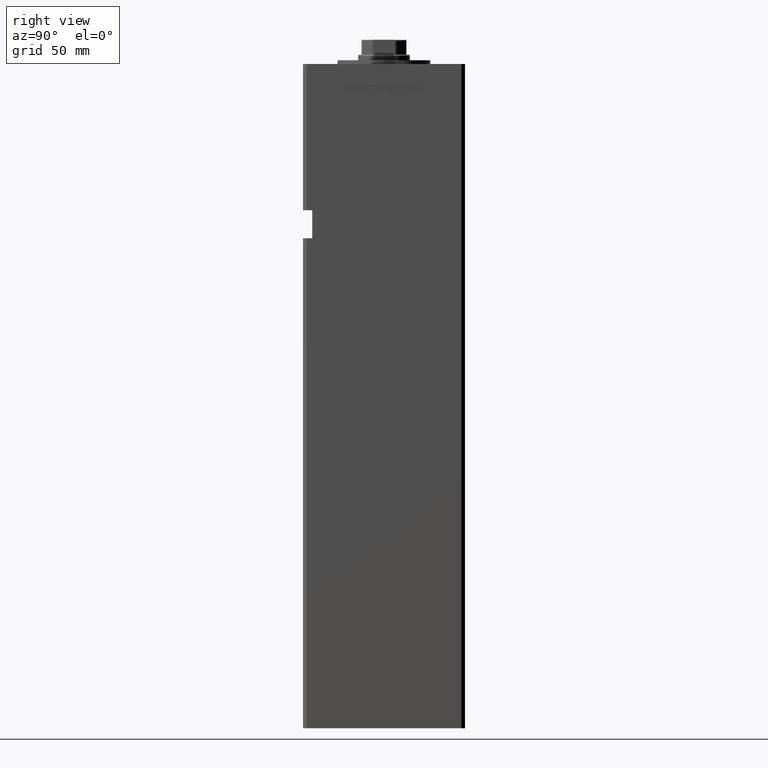
[diagram: clean part render]
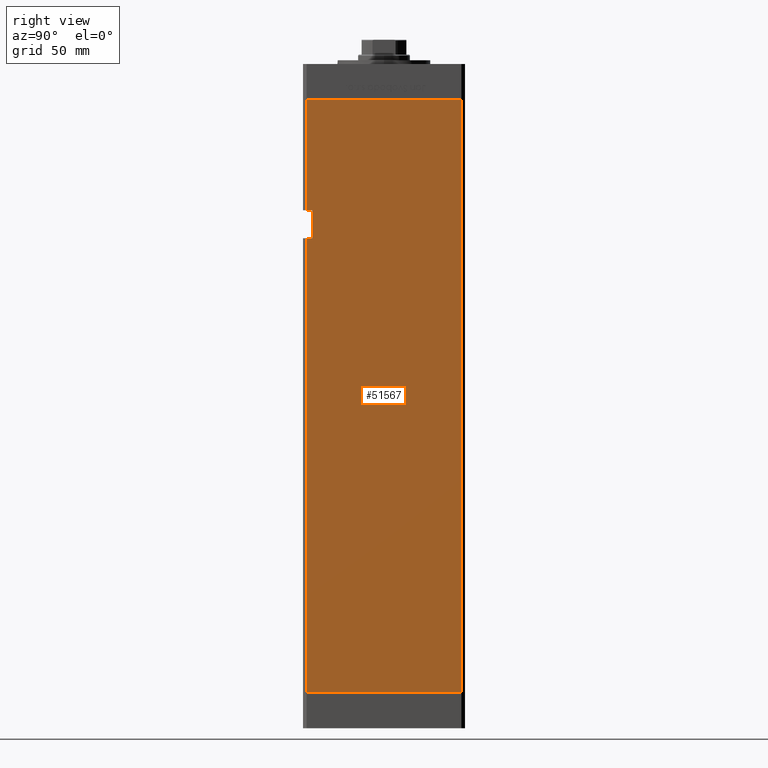
[diagram: same view with one face highlighted and labeled with its STEP entity id]
A machine part, right view. The second image highlights one B-rep face of the part: STEP entity #51567.
In plain terms, the highlighted planar face has unit normal (1, -0, 0).
Its self-contained STEP definition (entity closure, byte-faithful):
#620 = VERTEX_POINT ( 'NONE', #15685 ) ;
#904 = VECTOR ( 'NONE', #6779, 1000.000000000000000 ) ;
#1371 = DIRECTION ( 'NONE',  ( -3.344045254895050973E-16, -1.000000000000000000, 0.000000000000000000 ) ) ;
#1401 = DIRECTION ( 'NONE',  ( -0.000000000000000000, -1.000000000000000000, -0.000000000000000000 ) ) ;
#1900 = CARTESIAN_POINT ( 'NONE',  ( 50.00000000000001421, 41.49999999999999289, 318.5000000000000000 ) ) ;
#2284 = DIRECTION ( 'NONE',  ( -3.344045254895050973E-16, -1.000000000000000000, 0.000000000000000000 ) ) ;
#2687 = EDGE_CURVE ( 'NONE', #52659, #20783, #19948, .T. ) ;
#2776 = VECTOR ( 'NONE', #24453, 1000.000000000000000 ) ;
#3063 = ORIENTED_EDGE ( 'NONE', *, *, #32526, .T. ) ;
#4137 = VERTEX_POINT ( 'NONE', #47708 ) ;
#5709 = CARTESIAN_POINT ( 'NONE',  ( 49.99999999999998579, -38.50000000000000000, 259.0000000000000000 ) ) ;
#5918 = CARTESIAN_POINT ( 'NONE',  ( 49.99999999999998579, -38.49999999999999289, 244.0000000000000000 ) ) ;
#6779 = DIRECTION ( 'NONE',  ( -0.000000000000000000, -0.000000000000000000, 1.000000000000000000 ) ) ;
#6936 = CARTESIAN_POINT ( 'NONE',  ( 50.00000000000001421, 41.49999999999999289, 318.5000000000000000 ) ) ;
#7461 = DIRECTION ( 'NONE',  ( 3.344045254895050480E-16, 1.000000000000000000, 0.000000000000000000 ) ) ;
#8021 = CARTESIAN_POINT ( 'NONE',  ( 49.99999999999998579, -38.50000000000000000, 244.0000000000000000 ) ) ;
#10113 = LINE ( 'NONE', #39158, #34099 ) ;
#11547 = CARTESIAN_POINT ( 'NONE',  ( 49.99999999999998579, -38.50000000000000000, 259.0000000000000000 ) ) ;
#12897 = VERTEX_POINT ( 'NONE', #30451 ) ;
#13405 = VECTOR ( 'NONE', #1401, 1000.000000000000000 ) ;
#15685 = CARTESIAN_POINT ( 'NONE',  ( 49.99999999999998579, -41.49999999999999289, 244.0000000000000000 ) ) ;
#16389 = CARTESIAN_POINT ( 'NONE',  ( 50.00000000000001421, 41.49999999999999289, 0.000000000000000000 ) ) ;
#16949 = VERTEX_POINT ( 'NONE', #41810 ) ;
#19948 = LINE ( 'NONE', #47924, #904 ) ;
#20012 = LINE ( 'NONE', #40443, #20278 ) ;
#20039 = ORIENTED_EDGE ( 'NONE', *, *, #31445, .T. ) ;
#20061 = EDGE_CURVE ( 'NONE', #4137, #33356, #20012, .T. ) ;
#20278 = VECTOR ( 'NONE', #39917, 1000.000000000000000 ) ;
#20309 = ORIENTED_EDGE ( 'NONE', *, *, #22888, .F. ) ;
#20783 = VERTEX_POINT ( 'NONE', #11547 ) ;
#22644 = ORIENTED_EDGE ( 'NONE', *, *, #46360, .F. ) ;
#22888 = EDGE_CURVE ( 'NONE', #33356, #16949, #10113, .T. ) ;
#23361 = FACE_OUTER_BOUND ( 'NONE', #44980, .T. ) ;
#23894 = PLANE ( 'NONE',  #52192 ) ;
#24453 = DIRECTION ( 'NONE',  ( -0.000000000000000000, -1.000000000000000000, -0.000000000000000000 ) ) ;
#27249 = VERTEX_POINT ( 'NONE', #46795 ) ;
#27788 = LINE ( 'NONE', #47678, #37062 ) ;
#28178 = LINE ( 'NONE', #39475, #32030 ) ;
#29001 = VECTOR ( 'NONE', #1371, 1000.000000000000000 ) ;
#29871 = EDGE_CURVE ( 'NONE', #620, #16949, #27788, .T. ) ;
#30451 = CARTESIAN_POINT ( 'NONE',  ( 49.99999999999998579, -41.49999999999999289, 259.0000000000000000 ) ) ;
#30865 = ORIENTED_EDGE ( 'NONE', *, *, #20061, .F. ) ;
#31445 = EDGE_CURVE ( 'NONE', #52659, #620, #44872, .T. ) ;
#31787 = ORIENTED_EDGE ( 'NONE', *, *, #29871, .T. ) ;
#32030 = VECTOR ( 'NONE', #52088, 1000.000000000000000 ) ;
#32526 = EDGE_CURVE ( 'NONE', #27249, #12897, #28178, .T. ) ;
#33356 = VERTEX_POINT ( 'NONE', #16389 ) ;
#34099 = VECTOR ( 'NONE', #2284, 1000.000000000000000 ) ;
#37062 = VECTOR ( 'NONE', #39867, 1000.000000000000000 ) ;
#39158 = CARTESIAN_POINT ( 'NONE',  ( 50.00000000000001421, 41.49999999999999289, 0.000000000000000000 ) ) ;
#39475 = CARTESIAN_POINT ( 'NONE',  ( 49.99999999999998579, -41.49999999999999289, 318.5000000000000000 ) ) ;
#39867 = DIRECTION ( 'NONE',  ( -0.000000000000000000, -0.000000000000000000, -1.000000000000000000 ) ) ;
#39917 = DIRECTION ( 'NONE',  ( -0.000000000000000000, -0.000000000000000000, -1.000000000000000000 ) ) ;
#40284 = DIRECTION ( 'NONE',  ( 1.000000000000000000, -3.344045254895050480E-16, 0.000000000000000000 ) ) ;
#40443 = CARTESIAN_POINT ( 'NONE',  ( 50.00000000000001421, 41.49999999999999289, 318.5000000000000000 ) ) ;
#41810 = CARTESIAN_POINT ( 'NONE',  ( 49.99999999999998579, -41.49999999999999289, 0.000000000000000000 ) ) ;
#42267 = ORIENTED_EDGE ( 'NONE', *, *, #2687, .F. ) ;
#44872 = LINE ( 'NONE', #8021, #2776 ) ;
#44980 = EDGE_LOOP ( 'NONE', ( #20039, #31787, #20309, #30865, #48260, #3063, #22644, #42267 ) ) ;
#46360 = EDGE_CURVE ( 'NONE', #20783, #12897, #46866, .T. ) ;
#46795 = CARTESIAN_POINT ( 'NONE',  ( 49.99999999999998579, -41.49999999999999289, 318.5000000000000000 ) ) ;
#46866 = LINE ( 'NONE', #5709, #13405 ) ;
#47360 = LINE ( 'NONE', #1900, #29001 ) ;
#47678 = CARTESIAN_POINT ( 'NONE',  ( 49.99999999999998579, -41.49999999999999289, 318.5000000000000000 ) ) ;
#47708 = CARTESIAN_POINT ( 'NONE',  ( 50.00000000000001421, 41.49999999999999289, 318.5000000000000000 ) ) ;
#47924 = CARTESIAN_POINT ( 'NONE',  ( 49.99999999999998579, -38.50000000000000000, 259.0000000000000000 ) ) ;
#48260 = ORIENTED_EDGE ( 'NONE', *, *, #50116, .T. ) ;
#50116 = EDGE_CURVE ( 'NONE', #4137, #27249, #47360, .T. ) ;
#51567 = ADVANCED_FACE ( 'NONE', ( #23361 ), #23894, .T. ) ;
#52088 = DIRECTION ( 'NONE',  ( -0.000000000000000000, -0.000000000000000000, -1.000000000000000000 ) ) ;
#52192 = AXIS2_PLACEMENT_3D ( 'NONE', #6936, #40284, #7461 ) ;
#52659 = VERTEX_POINT ( 'NONE', #5918 ) ;